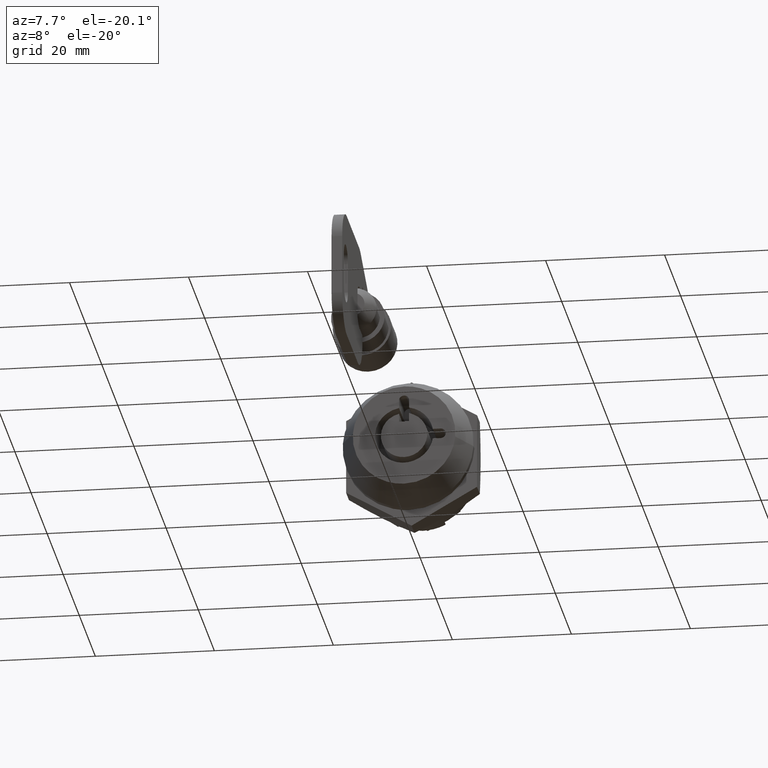
[diagram: clean part render]
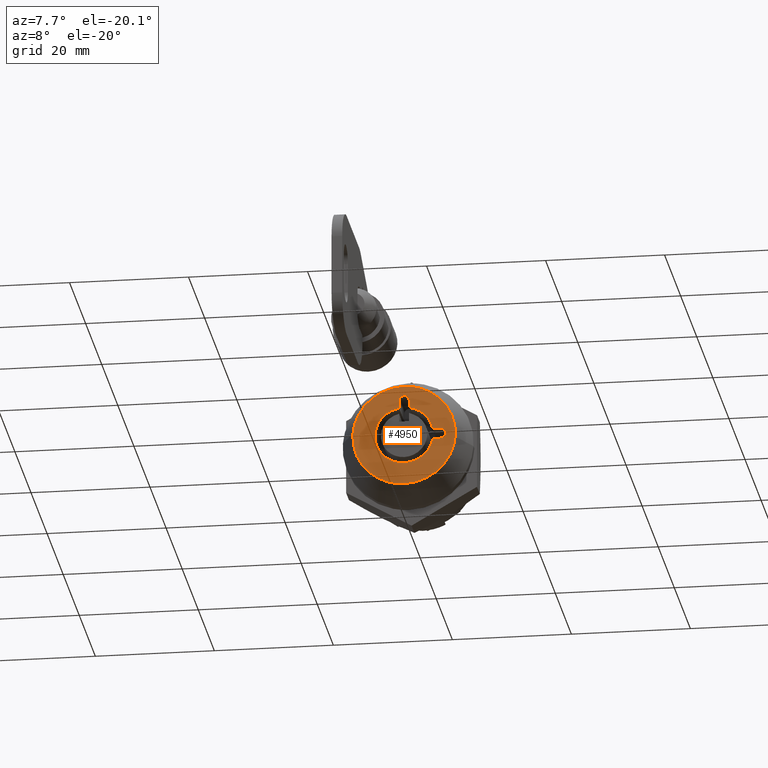
[diagram: same view with one face highlighted and labeled with its STEP entity id]
A machine part, auxiliary view. The second image highlights one B-rep face of the part: STEP entity #4950.
In plain terms, the highlighted face is a freeform B-spline surface patch.
Its self-contained STEP definition (entity closure, byte-faithful):
#3149=CARTESIAN_POINT('',(7.077075E-012,8.595216883393791,0.676458239289243));
#3150=VERTEX_POINT('',#3149);
#3156=CARTESIAN_POINT('',(0.0,0.0,8.621794999999890));
#3157=VERTEX_POINT('',#3156);
#3158=CARTESIAN_POINT('',(0.0,0.0,8.621794999999890));
#3159=CARTESIAN_POINT('',(0.0,7.969905318955227,8.621794999999890));
#3160=CARTESIAN_POINT('',(7.077075E-012,8.595216883393791,0.676458239289243));
#3168=(BOUNDED_CURVE()B_SPLINE_CURVE(2,(#3158,#3159,#3160),.UNSPECIFIED.,.F.,.U.)B_SPLINE_CURVE_WITH_KNOTS((3,3),(0.0,0.236331300631246),.UNSPECIFIED.)CURVE()GEOMETRIC_REPRESENTATION_ITEM()RATIONAL_B_SPLINE_CURVE((1.0,0.723120658606979,0.969723356168641))REPRESENTATION_ITEM(''));
#3169=EDGE_CURVE('',#3157,#3150,#3168,.T.);
#3171=CARTESIAN_POINT('',(7.076485E-012,-8.595216883393789,-0.676458239289243));
#3172=VERTEX_POINT('',#3171);
#3173=CARTESIAN_POINT('',(7.076485E-012,-8.595216883393791,-0.676458239289243));
#3174=CARTESIAN_POINT('',(0.0,-8.621794999999890,-0.338751248186499));
#3175=CARTESIAN_POINT('',(0.0,-8.621794999999890,0.0));
#3176=CARTESIAN_POINT('',(0.0,-8.621794999999890,8.621794999999890));
#3177=CARTESIAN_POINT('',(0.0,0.0,8.621794999999890));
#3185=(BOUNDED_CURVE()B_SPLINE_CURVE(2,(#3173,#3174,#3175,#3176,#3177),.UNSPECIFIED.,.F.,.U.)B_SPLINE_CURVE_WITH_KNOTS((3,2,3),(0.736331300631246,0.750000000000000,1.0),.UNSPECIFIED.)CURVE()GEOMETRIC_REPRESENTATION_ITEM()RATIONAL_B_SPLINE_CURVE((0.969723356168641,0.983986122579569,1.0,0.707106781186547,1.0))REPRESENTATION_ITEM(''));
#3186=EDGE_CURVE('',#3172,#3157,#3185,.T.);
#3223=CARTESIAN_POINT('',(0.0,0.0,-8.621794999999890));
#3224=VERTEX_POINT('',#3223);
#3225=CARTESIAN_POINT('',(0.0,0.0,-8.621794999999890));
#3226=CARTESIAN_POINT('',(0.0,-7.969905318955199,-8.621794999999890));
#3227=CARTESIAN_POINT('',(7.076485E-012,-8.595216883393789,-0.676458239289243));
#3235=(BOUNDED_CURVE()B_SPLINE_CURVE(2,(#3225,#3226,#3227),.UNSPECIFIED.,.F.,.U.)B_SPLINE_CURVE_WITH_KNOTS((3,3),(0.500000000000000,0.736331300631245),.UNSPECIFIED.)CURVE()GEOMETRIC_REPRESENTATION_ITEM()RATIONAL_B_SPLINE_CURVE((1.0,0.723120658606980,0.969723356168640))REPRESENTATION_ITEM(''));
#3236=EDGE_CURVE('',#3224,#3172,#3235,.T.);
#3238=CARTESIAN_POINT('',(7.077075E-012,8.595216883393791,0.676458239289243));
#3239=CARTESIAN_POINT('',(0.0,8.621794999999890,0.338751248186499));
#3240=CARTESIAN_POINT('',(0.0,8.621794999999890,0.0));
#3241=CARTESIAN_POINT('',(0.0,8.621794999999890,-8.621794999999890));
#3242=CARTESIAN_POINT('',(0.0,0.0,-8.621794999999890));
#3250=(BOUNDED_CURVE()B_SPLINE_CURVE(2,(#3238,#3239,#3240,#3241,#3242),.UNSPECIFIED.,.F.,.U.)B_SPLINE_CURVE_WITH_KNOTS((3,2,3),(0.236331300631246,0.250000000000000,0.500000000000000),.UNSPECIFIED.)CURVE()GEOMETRIC_REPRESENTATION_ITEM()RATIONAL_B_SPLINE_CURVE((0.969723356168641,0.983986122579569,1.0,0.707106781186547,1.0))REPRESENTATION_ITEM(''));
#3251=EDGE_CURVE('',#3150,#3224,#3250,.T.);
#3444=CARTESIAN_POINT('',(0.0,-6.150000000000000,0.850000000000000));
#3445=VERTEX_POINT('',#3444);
#3446=CARTESIAN_POINT('',(0.0,-4.825712382643640,0.850000000000095));
#3447=VERTEX_POINT('',#3446);
#3448=CARTESIAN_POINT('',(0.0,-6.150000000000000,0.850000000000000));
#3449=CARTESIAN_POINT('',(0.0,-4.825712382643640,0.850000000000095));
#3450=QUASI_UNIFORM_CURVE('',1,(#3448,#3449),.UNSPECIFIED.,.F.,.U.);
#3451=EDGE_CURVE('',#3445,#3447,#3450,.T.);
#3493=CARTESIAN_POINT('',(0.0,-6.150000000000000,-0.850000000000000));
#3494=VERTEX_POINT('',#3493);
#3495=CARTESIAN_POINT('',(0.0,-6.150000000000000,-0.849999999999999));
#3496=CARTESIAN_POINT('',(0.0,-6.999999999999999,-0.849999999999999));
#3497=CARTESIAN_POINT('',(0.0,-7.0,1.129699E-015));
#3498=CARTESIAN_POINT('',(0.0,-6.999999999999999,0.850000000000001));
#3499=CARTESIAN_POINT('',(0.0,-6.150000000000000,0.850000000000001));
#3507=(BOUNDED_CURVE()B_SPLINE_CURVE(2,(#3495,#3496,#3497,#3498,#3499),.UNSPECIFIED.,.F.,.U.)B_SPLINE_CURVE_WITH_KNOTS((3,2,3),(0.0,0.500000000000000,1.0),.UNSPECIFIED.)CURVE()GEOMETRIC_REPRESENTATION_ITEM()RATIONAL_B_SPLINE_CURVE((1.0,0.707106781186548,1.0,0.707106781186548,1.0))REPRESENTATION_ITEM(''));
#3508=EDGE_CURVE('',#3494,#3445,#3507,.T.);
#3541=CARTESIAN_POINT('',(0.0,-4.825712382643610,-0.849999999999908));
#3542=VERTEX_POINT('',#3541);
#3543=CARTESIAN_POINT('',(0.0,-4.825712382643610,-0.849999999999908));
#3544=CARTESIAN_POINT('',(0.0,-6.150000000000000,-0.850000000000000));
#3545=QUASI_UNIFORM_CURVE('',1,(#3543,#3544),.UNSPECIFIED.,.F.,.U.);
#3546=EDGE_CURVE('',#3542,#3494,#3545,.T.);
#4670=CARTESIAN_POINT('',(0.0,-0.850000000000015,4.825712382643619));
#4671=VERTEX_POINT('',#4670);
#4672=CARTESIAN_POINT('',(0.0,-4.825712382643640,0.850000000000095));
#4673=CARTESIAN_POINT('',(0.0,-4.230305974175578,4.230305974175644));
#4674=CARTESIAN_POINT('',(0.0,-0.850000000000015,4.825712382643621));
#4682=(BOUNDED_CURVE()B_SPLINE_CURVE(2,(#4672,#4673,#4674),.UNSPECIFIED.,.F.,.U.)CURVE()GEOMETRIC_REPRESENTATION_ITEM()QUASI_UNIFORM_CURVE()RATIONAL_B_SPLINE_CURVE((1.0,0.819047900781999,1.0))REPRESENTATION_ITEM(''));
#4683=EDGE_CURVE('',#3447,#4671,#4682,.T.);
#4783=CARTESIAN_POINT('',(0.0,0.850000000000028,6.149999999999800));
#4784=VERTEX_POINT('',#4783);
#4785=CARTESIAN_POINT('',(0.0,0.850000000000000,4.825712382643619));
#4786=VERTEX_POINT('',#4785);
#4787=CARTESIAN_POINT('',(0.0,0.850000000000028,6.149999999999800));
#4788=CARTESIAN_POINT('',(0.0,0.850000000000000,4.825712382643619));
#4789=QUASI_UNIFORM_CURVE('',1,(#4787,#4788),.UNSPECIFIED.,.F.,.U.);
#4790=EDGE_CURVE('',#4784,#4786,#4789,.T.);
#4824=CARTESIAN_POINT('',(0.0,-0.849999999999972,6.149999999999790));
#4825=VERTEX_POINT('',#4824);
#4826=CARTESIAN_POINT('',(0.0,-0.849999999999972,6.149999999999790));
#4827=CARTESIAN_POINT('',(0.0,-0.849999999999972,6.999999999999791));
#4828=CARTESIAN_POINT('',(0.0,2.842171E-014,6.999999999999790));
#4829=CARTESIAN_POINT('',(0.0,0.850000000000028,6.999999999999791));
#4830=CARTESIAN_POINT('',(0.0,0.850000000000028,6.149999999999790));
#4838=(BOUNDED_CURVE()B_SPLINE_CURVE(2,(#4826,#4827,#4828,#4829,#4830),.UNSPECIFIED.,.F.,.U.)B_SPLINE_CURVE_WITH_KNOTS((3,2,3),(0.0,0.500000000000000,1.0),.UNSPECIFIED.)CURVE()GEOMETRIC_REPRESENTATION_ITEM()RATIONAL_B_SPLINE_CURVE((1.0,0.707106781186548,1.0,0.707106781186548,1.0))REPRESENTATION_ITEM(''));
#4839=EDGE_CURVE('',#4825,#4784,#4838,.T.);
#4856=CARTESIAN_POINT('',(0.0,-0.850000000000015,4.825712382643619));
#4857=CARTESIAN_POINT('',(0.0,-0.849999999999972,6.149999999999790));
#4858=QUASI_UNIFORM_CURVE('',1,(#4856,#4857),.UNSPECIFIED.,.F.,.U.);
#4859=EDGE_CURVE('',#4671,#4825,#4858,.T.);
#4913=CARTESIAN_POINT('',(0.0,-9.480480155739247,-9.483111901731268));
#4914=CARTESIAN_POINT('',(0.0,-9.480480155739247,9.483111439222144));
#4915=CARTESIAN_POINT('',(0.0,9.480479693230119,-9.483111901731268));
#4916=CARTESIAN_POINT('',(0.0,9.480479693230119,9.483111439222144));
#4917=B_SPLINE_SURFACE_WITH_KNOTS('',1,1,((#4913,#4915),(#4914,#4916)),.UNSPECIFIED.,.F.,.F.,.U.,(2,2),(2,2),(0.0,18.966223340953409),(0.0,18.960959848969370),.UNSPECIFIED.);
#4918=ORIENTED_EDGE('',*,*,#3169,.T.);
#4919=ORIENTED_EDGE('',*,*,#3251,.T.);
#4920=ORIENTED_EDGE('',*,*,#3236,.T.);
#4921=ORIENTED_EDGE('',*,*,#3186,.T.);
#4922=EDGE_LOOP('',(#4918,#4919,#4920,#4921));
#4923=FACE_OUTER_BOUND('',#4922,.T.);
#4924=CARTESIAN_POINT('',(0.0,0.849999999999997,4.825712382643624));
#4925=CARTESIAN_POINT('',(0.0,5.145042705715931,4.069184431871191));
#4926=CARTESIAN_POINT('',(0.0,4.891727207892798,-0.284613639099279));
#4927=CARTESIAN_POINT('',(0.0,4.638411710069666,-4.638411710069750));
#4928=CARTESIAN_POINT('',(0.0,0.284613639099190,-4.891727207892803));
#4929=CARTESIAN_POINT('',(0.0,-4.069184431871282,-5.145042705715857));
#4930=CARTESIAN_POINT('',(0.0,-4.825712382643610,-0.849999999999908));
#4938=(BOUNDED_CURVE()B_SPLINE_CURVE(2,(#4924,#4925,#4926,#4927,#4928,#4929,#4930),.UNSPECIFIED.,.F.,.U.)B_SPLINE_CURVE_WITH_KNOTS((3,2,2,3),(0.0,0.333333333333333,0.666666666666667,1.0),.UNSPECIFIED.)CURVE()GEOMETRIC_REPRESENTATION_ITEM()RATIONAL_B_SPLINE_CURVE((1.0,0.746984839722650,1.0,0.746984839722650,1.0,0.746984839722650,1.0))REPRESENTATION_ITEM(''));
#4939=EDGE_CURVE('',#4786,#3542,#4938,.T.);
#4940=ORIENTED_EDGE('',*,*,#4939,.F.);
#4941=ORIENTED_EDGE('',*,*,#4790,.F.);
#4942=ORIENTED_EDGE('',*,*,#4839,.F.);
#4943=ORIENTED_EDGE('',*,*,#4859,.F.);
#4944=ORIENTED_EDGE('',*,*,#4683,.F.);
#4945=ORIENTED_EDGE('',*,*,#3451,.F.);
#4946=ORIENTED_EDGE('',*,*,#3508,.F.);
#4947=ORIENTED_EDGE('',*,*,#3546,.F.);
#4948=EDGE_LOOP('',(#4940,#4941,#4942,#4943,#4944,#4945,#4946,#4947));
#4949=FACE_BOUND('',#4948,.T.);
#4950=ADVANCED_FACE('',(#4923,#4949),#4917,.T.);